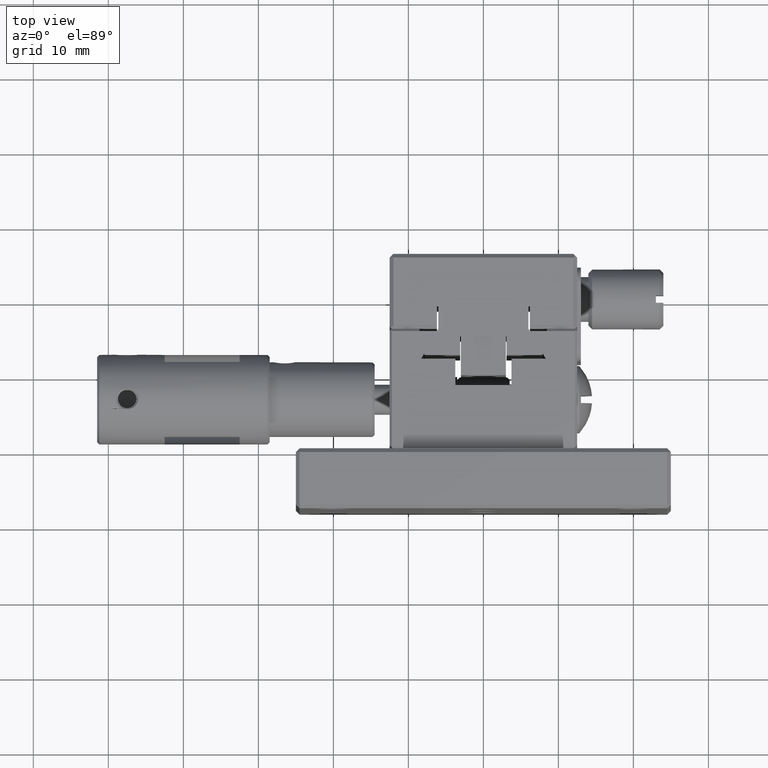
[diagram: clean part render]
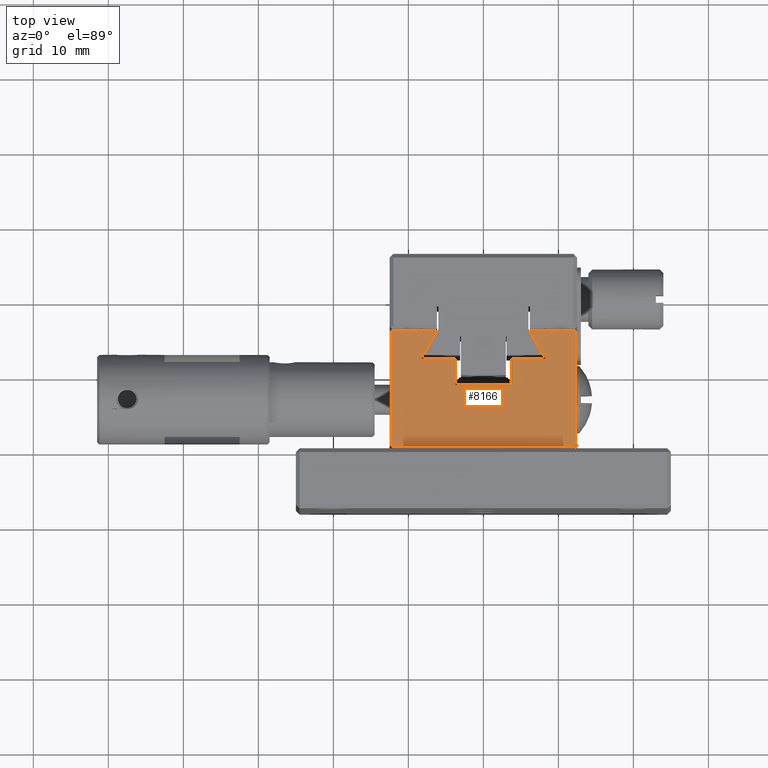
[diagram: same view with one face highlighted and labeled with its STEP entity id]
A machine part, top view. The second image highlights one B-rep face of the part: STEP entity #8166.
In plain terms, the highlighted planar face has unit normal (0, 0, 1).
Its self-contained STEP definition (entity closure, byte-faithful):
#88 = CARTESIAN_POINT ( 'NONE',  ( 0.000000000000000000, 0.2999999999999999889, 21.00000000000000000 ) ) ;
#105 = DIRECTION ( 'NONE',  ( -1.000000000000000000, -0.000000000000000000, 0.000000000000000000 ) ) ;
#315 = VERTEX_POINT ( 'NONE', #7324 ) ;
#353 = ORIENTED_EDGE ( 'NONE', *, *, #2932, .T. ) ;
#388 = DIRECTION ( 'NONE',  ( -1.000000000000000000, -0.000000000000000000, 0.000000000000000000 ) ) ;
#391 = ORIENTED_EDGE ( 'NONE', *, *, #3989, .T. ) ;
#430 = EDGE_CURVE ( 'NONE', #6607, #465, #6850, .T. ) ;
#465 = VERTEX_POINT ( 'NONE', #7588 ) ;
#534 = VECTOR ( 'NONE', #3535, 1000.000000000000227 ) ;
#619 = EDGE_LOOP ( 'NONE', ( #3356, #3022, #353, #4681, #391, #7130, #7214, #4119, #4645, #2782, #8023, #6245, #4183, #6789 ) ) ;
#720 = CARTESIAN_POINT ( 'NONE',  ( 8.309999999999996945, 11.99999999999999822, 21.00000000000000000 ) ) ;
#999 = EDGE_CURVE ( 'NONE', #1664, #6607, #1477, .T. ) ;
#1014 = VERTEX_POINT ( 'NONE', #1101 ) ;
#1077 = CARTESIAN_POINT ( 'NONE',  ( 0.000000000000000000, 8.500000000000000000, 21.00000000000000000 ) ) ;
#1082 = CARTESIAN_POINT ( 'NONE',  ( -8.500000000000000000, 15.69999999999999929, 21.00000000000000000 ) ) ;
#1101 = CARTESIAN_POINT ( 'NONE',  ( -12.19999999999999929, 0.2999999999999999334, 21.00000000000000000 ) ) ;
#1122 = CARTESIAN_POINT ( 'NONE',  ( -3.750000000000000000, 12.00000000000000000, 21.00000000000000000 ) ) ;
#1208 = VECTOR ( 'NONE', #6785, 1000.000000000000000 ) ;
#1291 = CARTESIAN_POINT ( 'NONE',  ( 0.000000000000000000, 15.69999999999999929, 21.00000000000000000 ) ) ;
#1294 = LINE ( 'NONE', #5714, #2446 ) ;
#1401 = CARTESIAN_POINT ( 'NONE',  ( 0.000000000000000000, 15.69999999999999929, 21.00000000000000000 ) ) ;
#1477 = LINE ( 'NONE', #2240, #1208 ) ;
#1479 = DIRECTION ( 'NONE',  ( 0.000000000000000000, -1.000000000000000000, -0.000000000000000000 ) ) ;
#1605 = LINE ( 'NONE', #5517, #4647 ) ;
#1638 = VECTOR ( 'NONE', #1700, 1000.000000000000114 ) ;
#1664 = VERTEX_POINT ( 'NONE', #8332 ) ;
#1687 = VECTOR ( 'NONE', #6091, 1000.000000000000000 ) ;
#1700 = DIRECTION ( 'NONE',  ( 0.5001411195169089829, -0.8659439130615637081, 0.000000000000000000 ) ) ;
#1830 = CARTESIAN_POINT ( 'NONE',  ( 6.173000000000000931, 15.69999999999999929, 21.00000000000000000 ) ) ;
#2000 = FACE_OUTER_BOUND ( 'NONE', #619, .T. ) ;
#2002 = DIRECTION ( 'NONE',  ( -1.000000000000000000, -0.000000000000000000, 0.000000000000000000 ) ) ;
#2240 = CARTESIAN_POINT ( 'NONE',  ( 3.750000000000000000, 0.000000000000000000, 21.00000000000000000 ) ) ;
#2263 = LINE ( 'NONE', #4783, #8255 ) ;
#2353 = DIRECTION ( 'NONE',  ( -1.000000000000000000, -0.000000000000000000, 0.000000000000000000 ) ) ;
#2446 = VECTOR ( 'NONE', #6270, 1000.000000000000000 ) ;
#2621 = VERTEX_POINT ( 'NONE', #1122 ) ;
#2779 = CARTESIAN_POINT ( 'NONE',  ( 12.20000000000000284, 15.69999999999999929, 21.00000000000000000 ) ) ;
#2782 = ORIENTED_EDGE ( 'NONE', *, *, #3705, .T. ) ;
#2839 = CARTESIAN_POINT ( 'NONE',  ( 12.19999999999999929, 0.000000000000000000, 21.00000000000000000 ) ) ;
#2891 = EDGE_CURVE ( 'NONE', #6212, #4187, #5863, .T. ) ;
#2932 = EDGE_CURVE ( 'NONE', #3067, #6212, #6118, .T. ) ;
#2940 = LINE ( 'NONE', #6649, #534 ) ;
#2944 = VECTOR ( 'NONE', #2353, 1000.000000000000000 ) ;
#2986 = CARTESIAN_POINT ( 'NONE',  ( -12.20000000000000639, 15.69999999999999929, 20.99999999999999645 ) ) ;
#3022 = ORIENTED_EDGE ( 'NONE', *, *, #5511, .F. ) ;
#3067 = VERTEX_POINT ( 'NONE', #6631 ) ;
#3312 = CARTESIAN_POINT ( 'NONE',  ( 0.000000000000000000, 0.000000000000000000, 21.00000000000000000 ) ) ;
#3337 = LINE ( 'NONE', #5270, #8292 ) ;
#3353 = VECTOR ( 'NONE', #2002, 1000.000000000000000 ) ;
#3356 = ORIENTED_EDGE ( 'NONE', *, *, #5031, .T. ) ;
#3482 = DIRECTION ( 'NONE',  ( -1.000000000000000000, -0.000000000000000000, 0.000000000000000000 ) ) ;
#3523 = LINE ( 'NONE', #6129, #1687 ) ;
#3535 = DIRECTION ( 'NONE',  ( 0.4999655925628682662, 0.8660452680162048500, 0.000000000000000000 ) ) ;
#3705 = EDGE_CURVE ( 'NONE', #465, #2621, #1294, .T. ) ;
#3760 = AXIS2_PLACEMENT_3D ( 'NONE', #3312, #4021, #5326 ) ;
#3869 = LINE ( 'NONE', #88, #7885 ) ;
#3989 = EDGE_CURVE ( 'NONE', #4187, #4643, #2263, .T. ) ;
#4021 = DIRECTION ( 'NONE',  ( 0.000000000000000000, 0.000000000000000000, 1.000000000000000000 ) ) ;
#4119 = ORIENTED_EDGE ( 'NONE', *, *, #999, .T. ) ;
#4183 = ORIENTED_EDGE ( 'NONE', *, *, #4710, .T. ) ;
#4187 = VERTEX_POINT ( 'NONE', #5120 ) ;
#4259 = LINE ( 'NONE', #5067, #1638 ) ;
#4530 = EDGE_CURVE ( 'NONE', #4643, #6247, #4259, .T. ) ;
#4643 = VERTEX_POINT ( 'NONE', #1830 ) ;
#4645 = ORIENTED_EDGE ( 'NONE', *, *, #430, .T. ) ;
#4647 = VECTOR ( 'NONE', #388, 1000.000000000000000 ) ;
#4681 = ORIENTED_EDGE ( 'NONE', *, *, #2891, .T. ) ;
#4710 = EDGE_CURVE ( 'NONE', #5637, #7748, #3523, .T. ) ;
#4783 = CARTESIAN_POINT ( 'NONE',  ( 0.000000000000000000, 15.69999999999999929, 21.00000000000000000 ) ) ;
#4788 = DIRECTION ( 'NONE',  ( -1.000000000000000000, -0.000000000000000000, -0.000000000000000000 ) ) ;
#4999 = DIRECTION ( 'NONE',  ( -1.000000000000000000, -0.000000000000000000, 0.000000000000000000 ) ) ;
#5031 = EDGE_CURVE ( 'NONE', #7458, #1014, #3337, .T. ) ;
#5067 = CARTESIAN_POINT ( 'NONE',  ( 6.173000000000000931, 15.69999999999999929, 21.00000000000000000 ) ) ;
#5120 = CARTESIAN_POINT ( 'NONE',  ( 8.500000000000001776, 15.69999999999999929, 21.00000000000000000 ) ) ;
#5203 = LINE ( 'NONE', #1291, #3353 ) ;
#5270 = CARTESIAN_POINT ( 'NONE',  ( -12.19999999999999929, 0.000000000000000000, 21.00000000000000000 ) ) ;
#5278 = EDGE_CURVE ( 'NONE', #6247, #1664, #1605, .T. ) ;
#5326 = DIRECTION ( 'NONE',  ( 1.000000000000000000, 0.000000000000000000, -0.000000000000000000 ) ) ;
#5442 = DIRECTION ( 'NONE',  ( -0.000000000000000000, 1.000000000000000000, 0.000000000000000000 ) ) ;
#5511 = EDGE_CURVE ( 'NONE', #3067, #1014, #3869, .T. ) ;
#5517 = CARTESIAN_POINT ( 'NONE',  ( 0.000000000000000000, 12.00000000000000000, 21.00000000000000000 ) ) ;
#5637 = VERTEX_POINT ( 'NONE', #6374 ) ;
#5714 = CARTESIAN_POINT ( 'NONE',  ( -3.750000000000000000, 0.000000000000000000, 21.00000000000000000 ) ) ;
#5863 = LINE ( 'NONE', #1401, #6883 ) ;
#5915 = PLANE ( 'NONE',  #3760 ) ;
#6091 = DIRECTION ( 'NONE',  ( -1.000000000000000000, -0.000000000000000000, 0.000000000000000000 ) ) ;
#6118 = LINE ( 'NONE', #2839, #6347 ) ;
#6129 = CARTESIAN_POINT ( 'NONE',  ( 0.000000000000000000, 15.69999999999999929, 21.00000000000000000 ) ) ;
#6181 = LINE ( 'NONE', #7459, #2944 ) ;
#6212 = VERTEX_POINT ( 'NONE', #2779 ) ;
#6245 = ORIENTED_EDGE ( 'NONE', *, *, #7362, .T. ) ;
#6247 = VERTEX_POINT ( 'NONE', #720 ) ;
#6270 = DIRECTION ( 'NONE',  ( -0.000000000000000000, 1.000000000000000000, 0.000000000000000000 ) ) ;
#6347 = VECTOR ( 'NONE', #5442, 1000.000000000000000 ) ;
#6374 = CARTESIAN_POINT ( 'NONE',  ( -6.173000000000004484, 15.70000000000000284, 21.00000000000000000 ) ) ;
#6607 = VERTEX_POINT ( 'NONE', #7239 ) ;
#6631 = CARTESIAN_POINT ( 'NONE',  ( 12.19999999999999929, 0.2999999999999999334, 21.00000000000000000 ) ) ;
#6649 = CARTESIAN_POINT ( 'NONE',  ( -8.308999999999999275, 12.00000000000000000, 21.00000000000000000 ) ) ;
#6785 = DIRECTION ( 'NONE',  ( 0.000000000000000000, -1.000000000000000000, -0.000000000000000000 ) ) ;
#6789 = ORIENTED_EDGE ( 'NONE', *, *, #7716, .T. ) ;
#6850 = LINE ( 'NONE', #1077, #8207 ) ;
#6883 = VECTOR ( 'NONE', #105, 1000.000000000000000 ) ;
#7130 = ORIENTED_EDGE ( 'NONE', *, *, #4530, .T. ) ;
#7214 = ORIENTED_EDGE ( 'NONE', *, *, #5278, .T. ) ;
#7239 = CARTESIAN_POINT ( 'NONE',  ( 3.750000000000000000, 8.500000000000000000, 21.00000000000000000 ) ) ;
#7324 = CARTESIAN_POINT ( 'NONE',  ( -8.309000000000001052, 12.00000000000000000, 21.00000000000000000 ) ) ;
#7352 = EDGE_CURVE ( 'NONE', #2621, #315, #6181, .T. ) ;
#7362 = EDGE_CURVE ( 'NONE', #315, #5637, #2940, .T. ) ;
#7458 = VERTEX_POINT ( 'NONE', #2986 ) ;
#7459 = CARTESIAN_POINT ( 'NONE',  ( 0.000000000000000000, 12.00000000000000000, 21.00000000000000000 ) ) ;
#7588 = CARTESIAN_POINT ( 'NONE',  ( -3.750000000000000000, 8.500000000000000000, 21.00000000000000000 ) ) ;
#7716 = EDGE_CURVE ( 'NONE', #7748, #7458, #5203, .T. ) ;
#7748 = VERTEX_POINT ( 'NONE', #1082 ) ;
#7885 = VECTOR ( 'NONE', #4788, 1000.000000000000000 ) ;
#8023 = ORIENTED_EDGE ( 'NONE', *, *, #7352, .T. ) ;
#8166 = ADVANCED_FACE ( 'NONE', ( #2000 ), #5915, .T. ) ;
#8207 = VECTOR ( 'NONE', #4999, 1000.000000000000000 ) ;
#8255 = VECTOR ( 'NONE', #3482, 1000.000000000000000 ) ;
#8292 = VECTOR ( 'NONE', #1479, 1000.000000000000000 ) ;
#8332 = CARTESIAN_POINT ( 'NONE',  ( 3.750000000000000000, 12.00000000000000000, 21.00000000000000000 ) ) ;